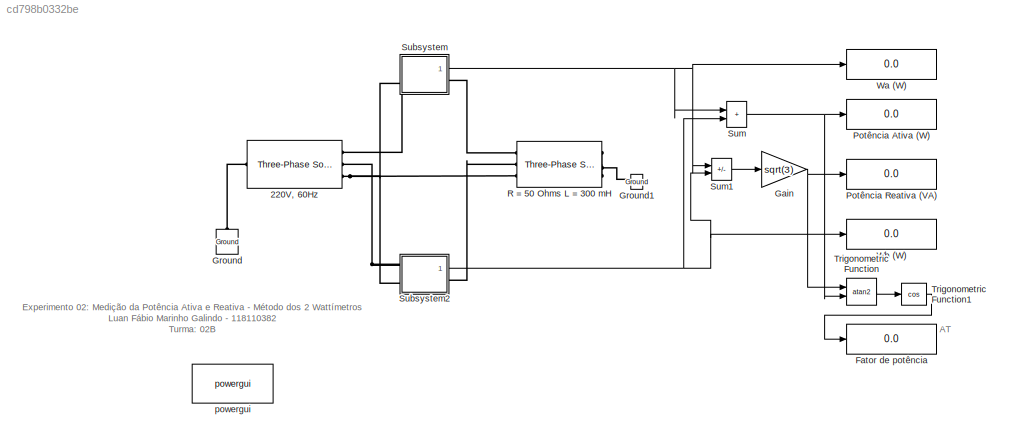
MODEL slx_cd798b0332be
KIND model
CONFIG AbsTol = auto
CONFIG EnableMultiTasking = off
CONFIG FixedStep = auto
CONFIG MaxStep = auto
CONFIG MinStep = auto
CONFIG RelTol = 1e-5
CONFIG SampleTimeConstraint = Unconstrained
CONFIG SolverName = ode23t
CONFIG StartTime = 0.0
CONFIG StopTime = 0.1
BLOCK [Reference] 220V, 60Hz  REF=spsThreePhaseSourceLib/Three-Phase Source
  Ports = [0, 0, 0, 0, 0, 1, 3]
  SourceBlock = spsThreePhaseSourceLib/Three-Phase Source
  SourceProductBaseCode = PS
  SourceType = Three-Phase Source
BLOCK [Display] Fator de potência
  Decimation = 1
  Format = bank
  Ports = [1]
BLOCK [Gain] Gain
  Gain = sqrt(3)
BLOCK [Reference] Ground  REF=spsGroundLib/Ground
  NameLocation = right
  Ports = [0, 0, 0, 0, 0, 1]
  SourceBlock = spsGroundLib/Ground
  SourceProductBaseCode = PS
  SourceType = Ground
BLOCK [Reference] Ground1  REF=spsGroundLib/Ground
  NameLocation = right
  Ports = [0, 0, 0, 0, 0, 1]
  SourceBlock = spsGroundLib/Ground
  SourceProductBaseCode = PS
  SourceType = Ground
BLOCK [Display] Potência Ativa (W)
  Decimation = 1
  Format = bank
  Ports = [1]
BLOCK [Display] Potência Reativa (VA)
  Decimation = 1
  Format = bank
  Ports = [1]
BLOCK [Reference] R = 50 Ohms L = 300 mH  REF=spsThreePhaseSeriesRLCBranchLib/Three-Phase
Series RLC Branch
  AttributesFormatString = \n
  Ports = [0, 0, 0, 0, 0, 3, 3]
  SourceBlock = spsThreePhaseSeriesRLCBranchLib/Three-Phase\nSeries RLC Branch
  SourceProductBaseCode = PS
  SourceType = Three-Phase Series RLC Branch
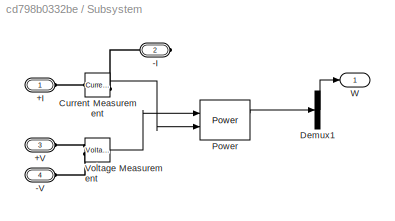
BLOCK [SubSystem] Subsystem
  Ports = [0, 1, 0, 0, 0, 3, 1]
  RequestExecContextInheritance = off
BLOCK [PMIOPort] Subsystem/+I
  Side = Left
BLOCK [PMIOPort] Subsystem/+V
  Port = 3
  Side = Left
BLOCK [PMIOPort] Subsystem/-I
  Port = 2
  Side = Right
BLOCK [PMIOPort] Subsystem/-V
  Port = 4
  Side = Left
BLOCK [Reference] Subsystem/Current Measurement  REF=spsCurrentMeasurementLib/Current Measurement
  Ports = [0, 1, 0, 0, 0, 1, 1]
  SourceBlock = spsCurrentMeasurementLib/Current Measurement
  SourceProductBaseCode = PS
  SourceType = Current Measurement
  UserDataPersistent = on
BLOCK [Demux] Subsystem/Demux1
  Outputs = 1
  Ports = [1, 1]
BLOCK [Reference] Subsystem/Power  REF=spsPowerLib/Power
  Ports = [2, 2]
  SourceBlock = spsPowerLib/Power
  SourceProductBaseCode = PS
  SourceType = Power
BLOCK [Reference] Subsystem/Voltage Measurement  REF=spsVoltageMeasurementLib/Voltage Measurement
  Ports = [0, 1, 0, 0, 0, 2]
  SourceBlock = spsVoltageMeasurementLib/Voltage Measurement
  SourceProductBaseCode = PS
  SourceType = Voltage Measurement
  UserDataPersistent = on
BLOCK [Outport] Subsystem/W
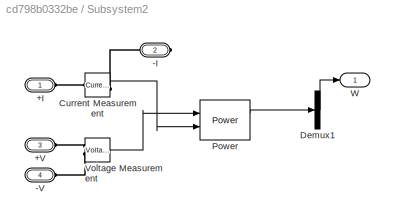
BLOCK [SubSystem] Subsystem2
  Ports = [0, 1, 0, 0, 0, 3, 1]
  RequestExecContextInheritance = off
BLOCK [PMIOPort] Subsystem2/+I
  Side = Left
BLOCK [PMIOPort] Subsystem2/+V
  Port = 3
  Side = Left
BLOCK [PMIOPort] Subsystem2/-I
  Port = 2
  Side = Right
BLOCK [PMIOPort] Subsystem2/-V
  Port = 4
  Side = Left
BLOCK [Reference] Subsystem2/Current Measurement  REF=spsCurrentMeasurementLib/Current Measurement
  Ports = [0, 1, 0, 0, 0, 1, 1]
  SourceBlock = spsCurrentMeasurementLib/Current Measurement
  SourceProductBaseCode = PS
  SourceType = Current Measurement
  UserDataPersistent = on
BLOCK [Demux] Subsystem2/Demux1
  Outputs = 1
  Ports = [1, 1]
BLOCK [Reference] Subsystem2/Power  REF=spsPowerLib/Power
  Ports = [2, 2]
  SourceBlock = spsPowerLib/Power
  SourceProductBaseCode = PS
  SourceType = Power
BLOCK [Reference] Subsystem2/Voltage Measurement  REF=spsVoltageMeasurementLib/Voltage Measurement
  Ports = [0, 1, 0, 0, 0, 2]
  SourceBlock = spsVoltageMeasurementLib/Voltage Measurement
  SourceProductBaseCode = PS
  SourceType = Voltage Measurement
  UserDataPersistent = on
BLOCK [Outport] Subsystem2/W
BLOCK [Sum] Sum
  IconShape = rectangular
  Inputs = |++
  Ports = [2, 1]
BLOCK [Sum] Sum1
  IconShape = rectangular
  Inputs = |+-
  Ports = [2, 1]
BLOCK [Trigonometry] Trigonometric Function
  Operator = atan2
  Ports = [2, 1]
BLOCK [Trigonometry] Trigonometric Function1
  Operator = cos
  Ports = [1, 1]
BLOCK [Display] Wa (W)
  Decimation = 1
  Format = bank
  Ports = [1]
BLOCK [Display] Wb (W)
  Decimation = 1
  Format = bank
  Ports = [1]
BLOCK [Reference] powergui   REF=spspowerguiLib/powergui
  Ports = []
  Priority = 1
  SourceBlock = spspowerguiLib/powergui
  SourceProductBaseCode = PS
  SourceType = PSB option menu block
ANNOTATION (root): Experimento 02: Medição da Potência Ativa e Reativa - Método dos 2 Wattímetros Luan Fábio Marinho Galindo - 118110382 Turma: 02B
ANNOTATION (root): AT
NET Gain:1 -> Potência Reativa (VA):1, Trigonometric Function:1
LINE Subsystem/Current Measurement:1 -> Subsystem/Power:2
LINE Subsystem/Demux1:1 -> Subsystem/W:1
LINE Subsystem/Power:1 -> Subsystem/Demux1:1
LINE Subsystem/Voltage Measurement:1 -> Subsystem/Power:1
LINE Subsystem2/Current Measurement:1 -> Subsystem2/Power:2
LINE Subsystem2/Demux1:1 -> Subsystem2/W:1
LINE Subsystem2/Power:1 -> Subsystem2/Demux1:1
LINE Subsystem2/Voltage Measurement:1 -> Subsystem2/Power:1
NET Subsystem2:1 -> Sum1:2, Sum:2, Wb (W):1
NET Subsystem:1 -> Sum1:1, Sum:1, Wa (W):1
LINE Sum1:1 -> Gain:1
NET Sum:1 -> Potência Ativa (W):1, Trigonometric Function:2
LINE Trigonometric Function1:1 -> Fator de potência:1
LINE Trigonometric Function:1 -> Trigonometric Function1:1
PLINE 220V, 60Hz:LConn1 -- Ground:LConn1
PNET net1: 220V, 60Hz:RConn1 -- Subsystem:LConn1 -- Subsystem:LConn2
PNET net2: 220V, 60Hz:RConn2 -- Subsystem2:LConn1 -- Subsystem2:LConn2
PNET net3: 220V, 60Hz:RConn3 -- R = 50 Ohms L = 300 mH:LConn3 -- Subsystem2:LConn3 -- Subsystem:LConn3
PNET net4: Ground1:LConn1 -- R = 50 Ohms L = 300 mH:RConn1 -- R = 50 Ohms L = 300 mH:RConn2 -- R = 50 Ohms L = 300 mH:RConn3
PLINE R = 50 Ohms L = 300 mH:LConn1 -- Subsystem:RConn1
PLINE R = 50 Ohms L = 300 mH:LConn2 -- Subsystem2:RConn1
PLINE Subsystem/+I:RConn1 -- Subsystem/Current Measurement:LConn1
PLINE Subsystem/+V:RConn1 -- Subsystem/Voltage Measurement:LConn1
PLINE Subsystem/-I:RConn1 -- Subsystem/Current Measurement:RConn1
PLINE Subsystem/-V:RConn1 -- Subsystem/Voltage Measurement:LConn2
PLINE Subsystem2/+I:RConn1 -- Subsystem2/Current Measurement:LConn1
PLINE Subsystem2/+V:RConn1 -- Subsystem2/Voltage Measurement:LConn1
PLINE Subsystem2/-I:RConn1 -- Subsystem2/Current Measurement:RConn1
PLINE Subsystem2/-V:RConn1 -- Subsystem2/Voltage Measurement:LConn2
note: NET lines group one-source signal fan-out (src -> all destinations, sorted); 1:1 wires keep LINE; PNET lines group multi-terminal physical nets as a canonical sorted terminal list (undirected conserving connections); 2-terminal nets keep the pairwise PLINE form
